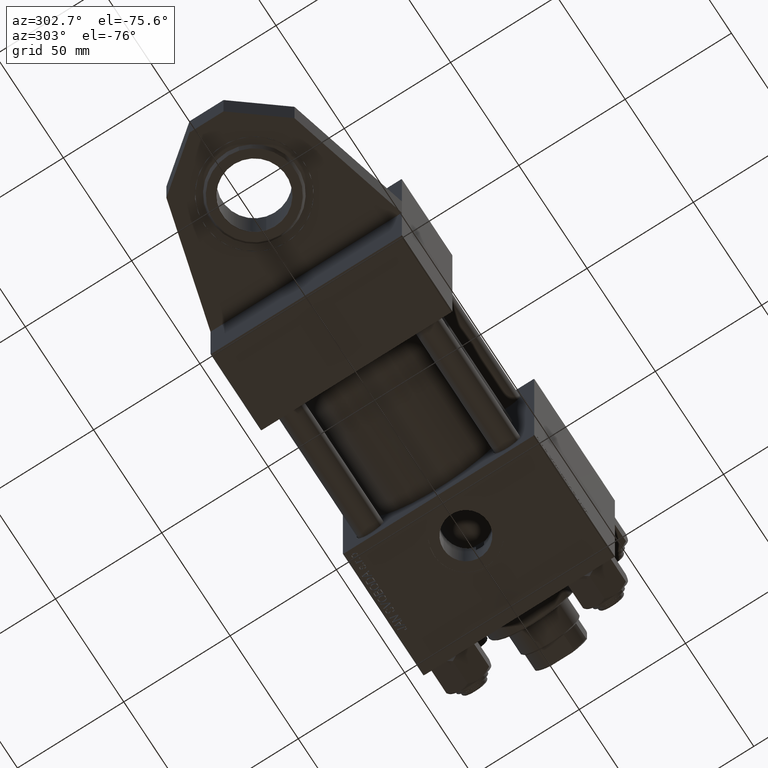
[diagram: clean part render]
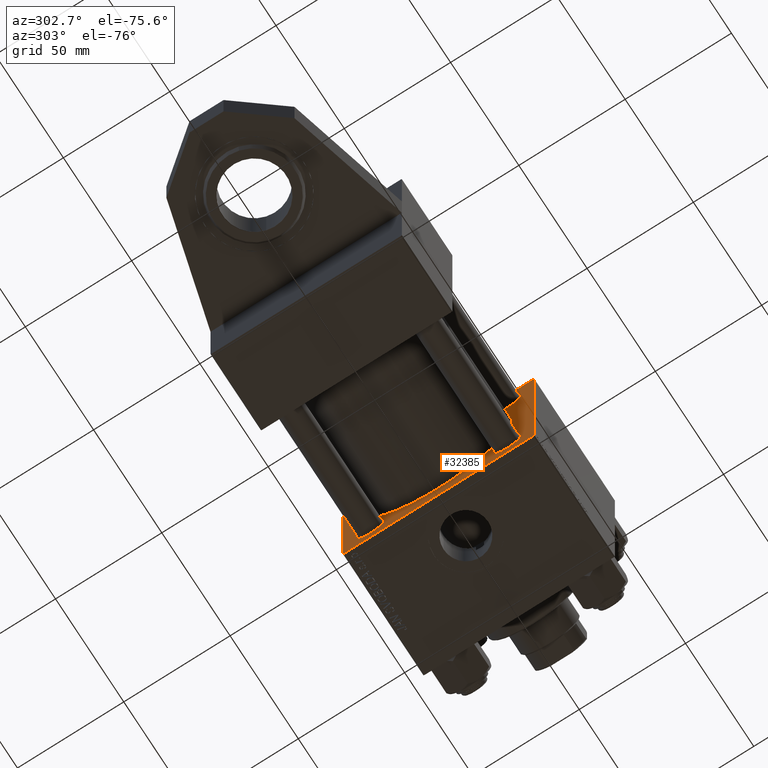
[diagram: same view with one face highlighted and labeled with its STEP entity id]
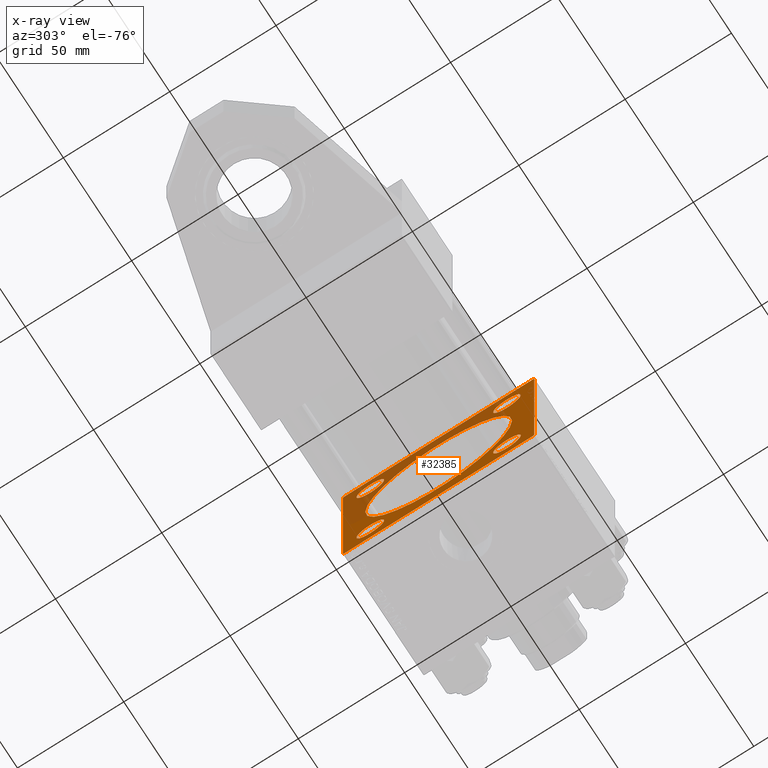
[diagram: x-ray of the same camera — body ghosted, the highlighted face saturated]
A machine part, auxiliary view. The second image highlights one B-rep face of the part: STEP entity #32385.
The next image is the same camera in x-ray: the body ghosted, the highlighted face saturated — about 37% of this face is hidden behind the body in this view.
In plain terms, the highlighted planar face has unit normal (-1, 0, 0).
Its self-contained STEP definition (entity closure, byte-faithful):
#149 = EDGE_CURVE ( 'NONE', #8899, #30186, #46057, .T. ) ;
#289 = EDGE_LOOP ( 'NONE', ( #23465, #17514 ) ) ;
#728 = CARTESIAN_POINT ( 'NONE',  ( 97.00000000000000000, -44.74999999999997158, 44.74999999999997158 ) ) ;
#780 = VERTEX_POINT ( 'NONE', #11046 ) ;
#839 = EDGE_CURVE ( 'NONE', #32748, #32098, #35533, .T. ) ;
#1554 = CARTESIAN_POINT ( 'NONE',  ( 97.00000000000000000, -32.14999999999999147, 32.14999999999999147 ) ) ;
#2432 = LINE ( 'NONE', #13619, #17918 ) ;
#2806 = VERTEX_POINT ( 'NONE', #44002 ) ;
#3356 = DIRECTION ( 'NONE',  ( 0.000000000000000000, 0.000000000000000000, 1.000000000000000000 ) ) ;
#3365 = CARTESIAN_POINT ( 'NONE',  ( 97.00000000000000000, 32.14999999999999147, -32.15000000000000568 ) ) ;
#3500 = FACE_BOUND ( 'NONE', #289, .T. ) ;
#3706 = DIRECTION ( 'NONE',  ( 1.000000000000000000, 0.000000000000000000, 0.000000000000000000 ) ) ;
#3851 = CARTESIAN_POINT ( 'NONE',  ( 97.00000000000000000, -45.00000000000000000, 44.99999999999998579 ) ) ;
#3998 = CARTESIAN_POINT ( 'NONE',  ( 97.00000000000000000, 0.000000000000000000, 0.000000000000000000 ) ) ;
#4211 = VERTEX_POINT ( 'NONE', #43145 ) ;
#4386 = AXIS2_PLACEMENT_3D ( 'NONE', #19451, #3706, #34706 ) ;
#5355 = VERTEX_POINT ( 'NONE', #45719 ) ;
#5526 = EDGE_LOOP ( 'NONE', ( #23642, #17345 ) ) ;
#5701 = CIRCLE ( 'NONE', #26782, 6.499999999999977796 ) ;
#5805 = DIRECTION ( 'NONE',  ( 0.000000000000000000, -1.000000000000000000, 0.000000000000000000 ) ) ;
#5889 = VECTOR ( 'NONE', #6774, 1000.000000000000000 ) ;
#5965 = AXIS2_PLACEMENT_3D ( 'NONE', #41883, #7077, #30462 ) ;
#6399 = EDGE_CURVE ( 'NONE', #4211, #17092, #49511, .T. ) ;
#6440 = CIRCLE ( 'NONE', #34833, 34.50000000000000000 ) ;
#6774 = DIRECTION ( 'NONE',  ( 0.000000000000000000, 0.7071067811865672237, -0.7071067811865279218 ) ) ;
#7077 = DIRECTION ( 'NONE',  ( 1.000000000000000000, 0.000000000000000000, 0.000000000000000000 ) ) ;
#7206 = EDGE_CURVE ( 'NONE', #2806, #5355, #2432, .T. ) ;
#7510 = DIRECTION ( 'NONE',  ( 1.000000000000000000, 0.000000000000000000, 0.000000000000000000 ) ) ;
#7819 = FACE_BOUND ( 'NONE', #30782, .T. ) ;
#7973 = DIRECTION ( 'NONE',  ( 0.000000000000000000, 0.000000000000000000, -1.000000000000000000 ) ) ;
#8726 = DIRECTION ( 'NONE',  ( 1.000000000000000000, 0.000000000000000000, 0.000000000000000000 ) ) ;
#8899 = VERTEX_POINT ( 'NONE', #39683 ) ;
#9544 = VERTEX_POINT ( 'NONE', #40557 ) ;
#9945 = DIRECTION ( 'NONE',  ( 1.000000000000000000, 0.000000000000000000, 0.000000000000000000 ) ) ;
#11046 = CARTESIAN_POINT ( 'NONE',  ( 97.00000000000000000, 32.14999999999999147, -38.65000000000000568 ) ) ;
#11074 = DIRECTION ( 'NONE',  ( 0.000000000000000000, 0.000000000000000000, -1.000000000000000000 ) ) ;
#11245 = DIRECTION ( 'NONE',  ( 0.000000000000000000, 0.000000000000000000, 1.000000000000000000 ) ) ;
#11264 = VERTEX_POINT ( 'NONE', #22718 ) ;
#11580 = EDGE_CURVE ( 'NONE', #28352, #29652, #39571, .T. ) ;
#11787 = EDGE_LOOP ( 'NONE', ( #26591, #37643, #44524, #38356, #26624, #46240, #13344, #46895 ) ) ;
#12314 = CARTESIAN_POINT ( 'NONE',  ( 97.00000000000000000, -44.49999999999994316, 44.99999999999998579 ) ) ;
#12391 = DIRECTION ( 'NONE',  ( 1.000000000000000000, 0.000000000000000000, 0.000000000000000000 ) ) ;
#12577 = VECTOR ( 'NONE', #5805, 1000.000000000000000 ) ;
#13344 = ORIENTED_EDGE ( 'NONE', *, *, #7206, .T. ) ;
#13395 = DIRECTION ( 'NONE',  ( 0.000000000000000000, -1.000000000000000000, -1.541976423090495140E-16 ) ) ;
#13587 = EDGE_CURVE ( 'NONE', #22645, #29652, #24352, .T. ) ;
#13619 = CARTESIAN_POINT ( 'NONE',  ( 97.00000000000000000, 45.00000000000001421, 45.00000000000000000 ) ) ;
#14620 = AXIS2_PLACEMENT_3D ( 'NONE', #27874, #20234, #16433 ) ;
#14799 = VECTOR ( 'NONE', #13395, 1000.000000000000000 ) ;
#15279 = DIRECTION ( 'NONE',  ( 0.000000000000000000, 0.000000000000000000, 1.000000000000000000 ) ) ;
#15294 = LINE ( 'NONE', #3851, #36020 ) ;
#15364 = EDGE_CURVE ( 'NONE', #9544, #39203, #30214, .T. ) ;
#16054 = EDGE_CURVE ( 'NONE', #28352, #2806, #48697, .T. ) ;
#16222 = CARTESIAN_POINT ( 'NONE',  ( 97.00000000000000000, 45.00000000000001421, 45.00000000000000000 ) ) ;
#16433 = DIRECTION ( 'NONE',  ( 0.000000000000000000, 0.000000000000000000, 1.000000000000000000 ) ) ;
#16938 = ORIENTED_EDGE ( 'NONE', *, *, #15364, .T. ) ;
#16997 = LINE ( 'NONE', #44164, #12577 ) ;
#17092 = VERTEX_POINT ( 'NONE', #17194 ) ;
#17192 = EDGE_CURVE ( 'NONE', #30186, #8899, #39182, .T. ) ;
#17194 = CARTESIAN_POINT ( 'NONE',  ( 97.00000000000000000, 32.14999999999999147, 38.64999999999998437 ) ) ;
#17324 = CIRCLE ( 'NONE', #5965, 6.499999999999977796 ) ;
#17345 = ORIENTED_EDGE ( 'NONE', *, *, #17192, .T. ) ;
#17446 = ORIENTED_EDGE ( 'NONE', *, *, #6399, .T. ) ;
#17514 = ORIENTED_EDGE ( 'NONE', *, *, #45112, .T. ) ;
#17918 = VECTOR ( 'NONE', #28871, 1000.000000000000000 ) ;
#18118 = DIRECTION ( 'NONE',  ( 1.000000000000000000, 0.000000000000000000, 0.000000000000000000 ) ) ;
#18289 = EDGE_CURVE ( 'NONE', #17092, #4211, #17324, .T. ) ;
#19451 = CARTESIAN_POINT ( 'NONE',  ( 97.00000000000000000, 32.14999999999999147, -32.15000000000000568 ) ) ;
#19503 = FACE_BOUND ( 'NONE', #33205, .T. ) ;
#19576 = VERTEX_POINT ( 'NONE', #43029 ) ;
#19813 = CARTESIAN_POINT ( 'NONE',  ( 97.00000000000000000, -32.15000000000001279, -38.65000000000001279 ) ) ;
#19838 = EDGE_CURVE ( 'NONE', #22645, #28467, #15294, .T. ) ;
#20007 = CARTESIAN_POINT ( 'NONE',  ( 97.00000000000000000, 44.75000000000000000, -44.75000000000000000 ) ) ;
#20126 = EDGE_CURVE ( 'NONE', #19576, #28467, #37342, .T. ) ;
#20234 = DIRECTION ( 'NONE',  ( 1.000000000000000000, 0.000000000000000000, 0.000000000000000000 ) ) ;
#21563 = AXIS2_PLACEMENT_3D ( 'NONE', #3998, #31198, #34997 ) ;
#21938 = EDGE_CURVE ( 'NONE', #34877, #19576, #16997, .T. ) ;
#22133 = CARTESIAN_POINT ( 'NONE',  ( 97.00000000000000000, -2.602085213965210642E-15, 34.50000000000000000 ) ) ;
#22548 = CARTESIAN_POINT ( 'NONE',  ( 97.00000000000000000, -44.99999999999999289, -44.49999999999991473 ) ) ;
#22645 = VERTEX_POINT ( 'NONE', #50019 ) ;
#22718 = CARTESIAN_POINT ( 'NONE',  ( 97.00000000000000000, 32.14999999999999147, -25.65000000000000568 ) ) ;
#23313 = FACE_OUTER_BOUND ( 'NONE', #11787, .T. ) ;
#23465 = ORIENTED_EDGE ( 'NONE', *, *, #24768, .T. ) ;
#23478 = AXIS2_PLACEMENT_3D ( 'NONE', #3365, #18118, #11245 ) ;
#23642 = ORIENTED_EDGE ( 'NONE', *, *, #149, .T. ) ;
#24315 = DIRECTION ( 'NONE',  ( 0.000000000000000000, 0.000000000000000000, 1.000000000000000000 ) ) ;
#24352 = LINE ( 'NONE', #728, #39908 ) ;
#24475 = DIRECTION ( 'NONE',  ( 1.000000000000000000, 0.000000000000000000, 0.000000000000000000 ) ) ;
#24768 = EDGE_CURVE ( 'NONE', #11264, #780, #35212, .T. ) ;
#25573 = CARTESIAN_POINT ( 'NONE',  ( 97.00000000000000000, 44.74999999999875655, 44.75000000000125056 ) ) ;
#26591 = ORIENTED_EDGE ( 'NONE', *, *, #21938, .T. ) ;
#26624 = ORIENTED_EDGE ( 'NONE', *, *, #11580, .F. ) ;
#26680 = CARTESIAN_POINT ( 'NONE',  ( 97.00000000000000000, 1.622946243093158675E-15, -34.50000000000000000 ) ) ;
#26727 = DIRECTION ( 'NONE',  ( 0.000000000000000000, 7.709882115452478166E-17, -1.000000000000000000 ) ) ;
#26782 = AXIS2_PLACEMENT_3D ( 'NONE', #32108, #24475, #3356 ) ;
#27044 = AXIS2_PLACEMENT_3D ( 'NONE', #36477, #12391, #24315 ) ;
#27874 = CARTESIAN_POINT ( 'NONE',  ( 97.00000000000000000, 32.14999999999999147, 32.15000000000000568 ) ) ;
#28173 = ORIENTED_EDGE ( 'NONE', *, *, #42140, .T. ) ;
#28352 = VERTEX_POINT ( 'NONE', #46160 ) ;
#28377 = VECTOR ( 'NONE', #45934, 1000.000000000000114 ) ;
#28467 = VERTEX_POINT ( 'NONE', #22548 ) ;
#28550 = CARTESIAN_POINT ( 'NONE',  ( 97.00000000000000000, -32.14999999999999147, 25.65000000000001279 ) ) ;
#28826 = EDGE_LOOP ( 'NONE', ( #16938, #40066 ) ) ;
#28871 = DIRECTION ( 'NONE',  ( 0.000000000000000000, 0.000000000000000000, -1.000000000000000000 ) ) ;
#29652 = VERTEX_POINT ( 'NONE', #12314 ) ;
#30186 = VERTEX_POINT ( 'NONE', #19813 ) ;
#30214 = CIRCLE ( 'NONE', #48881, 6.499999999999977796 ) ;
#30462 = DIRECTION ( 'NONE',  ( 0.000000000000000000, 0.000000000000000000, 1.000000000000000000 ) ) ;
#30782 = EDGE_LOOP ( 'NONE', ( #50146, #28173 ) ) ;
#31198 = DIRECTION ( 'NONE',  ( -1.000000000000000000, 0.000000000000000000, -0.000000000000000000 ) ) ;
#31635 = CARTESIAN_POINT ( 'NONE',  ( 97.00000000000000000, 44.50000000000001421, -45.00000000000000000 ) ) ;
#31736 = DIRECTION ( 'NONE',  ( -0.000000000000000000, 0.7071067811865474617, 0.7071067811865474617 ) ) ;
#32098 = VERTEX_POINT ( 'NONE', #26680 ) ;
#32108 = CARTESIAN_POINT ( 'NONE',  ( 97.00000000000000000, -32.14999999999999147, 32.14999999999999147 ) ) ;
#32385 = ADVANCED_FACE ( 'NONE', ( #38297, #19503, #3500, #34495, #7819, #23313 ), #38796, .T. ) ;
#32748 = VERTEX_POINT ( 'NONE', #22133 ) ;
#33205 = EDGE_LOOP ( 'NONE', ( #42361, #17446 ) ) ;
#33539 = CARTESIAN_POINT ( 'NONE',  ( 97.00000000000000000, -44.74999999999965183, -44.75000000000027001 ) ) ;
#34495 = FACE_BOUND ( 'NONE', #5526, .T. ) ;
#34706 = DIRECTION ( 'NONE',  ( 0.000000000000000000, 0.000000000000000000, 1.000000000000000000 ) ) ;
#34833 = AXIS2_PLACEMENT_3D ( 'NONE', #45864, #7510, #11074 ) ;
#34877 = VERTEX_POINT ( 'NONE', #31635 ) ;
#34997 = DIRECTION ( 'NONE',  ( -0.000000000000000000, 0.000000000000000000, 1.000000000000000000 ) ) ;
#35212 = CIRCLE ( 'NONE', #4386, 6.499999999999999112 ) ;
#35533 = CIRCLE ( 'NONE', #37968, 34.50000000000000000 ) ;
#36020 = VECTOR ( 'NONE', #26727, 1000.000000000000000 ) ;
#36477 = CARTESIAN_POINT ( 'NONE',  ( 97.00000000000000000, -32.15000000000001279, -32.15000000000000568 ) ) ;
#37342 = LINE ( 'NONE', #33539, #37697 ) ;
#37643 = ORIENTED_EDGE ( 'NONE', *, *, #20126, .T. ) ;
#37697 = VECTOR ( 'NONE', #49036, 1000.000000000000000 ) ;
#37968 = AXIS2_PLACEMENT_3D ( 'NONE', #43519, #8726, #7973 ) ;
#38297 = FACE_BOUND ( 'NONE', #28826, .T. ) ;
#38356 = ORIENTED_EDGE ( 'NONE', *, *, #13587, .T. ) ;
#38389 = CARTESIAN_POINT ( 'NONE',  ( 97.00000000000000000, -32.15000000000001279, -32.15000000000000568 ) ) ;
#38796 = PLANE ( 'NONE',  #21563 ) ;
#39182 = CIRCLE ( 'NONE', #27044, 6.500000000000005329 ) ;
#39203 = VERTEX_POINT ( 'NONE', #28550 ) ;
#39559 = AXIS2_PLACEMENT_3D ( 'NONE', #38389, #42952, #15279 ) ;
#39571 = LINE ( 'NONE', #16222, #14799 ) ;
#39683 = CARTESIAN_POINT ( 'NONE',  ( 97.00000000000000000, -32.15000000000001279, -25.64999999999999858 ) ) ;
#39796 = CIRCLE ( 'NONE', #23478, 6.499999999999999112 ) ;
#39908 = VECTOR ( 'NONE', #31736, 1000.000000000000114 ) ;
#40066 = ORIENTED_EDGE ( 'NONE', *, *, #44019, .T. ) ;
#40557 = CARTESIAN_POINT ( 'NONE',  ( 97.00000000000000000, -32.14999999999999147, 38.64999999999997016 ) ) ;
#41883 = CARTESIAN_POINT ( 'NONE',  ( 97.00000000000000000, 32.14999999999999147, 32.15000000000000568 ) ) ;
#42140 = EDGE_CURVE ( 'NONE', #32098, #32748, #6440, .T. ) ;
#42361 = ORIENTED_EDGE ( 'NONE', *, *, #18289, .T. ) ;
#42364 = LINE ( 'NONE', #20007, #28377 ) ;
#42952 = DIRECTION ( 'NONE',  ( 1.000000000000000000, 0.000000000000000000, 0.000000000000000000 ) ) ;
#43029 = CARTESIAN_POINT ( 'NONE',  ( 97.00000000000000000, -44.49999999999990052, -45.00000000000000000 ) ) ;
#43145 = CARTESIAN_POINT ( 'NONE',  ( 97.00000000000000000, 32.14999999999999147, 25.65000000000002700 ) ) ;
#43519 = CARTESIAN_POINT ( 'NONE',  ( 97.00000000000000000, -2.602085213965210642E-15, 0.000000000000000000 ) ) ;
#44002 = CARTESIAN_POINT ( 'NONE',  ( 97.00000000000000000, 45.00000000000001421, 44.50000000000000000 ) ) ;
#44019 = EDGE_CURVE ( 'NONE', #39203, #9544, #5701, .T. ) ;
#44164 = CARTESIAN_POINT ( 'NONE',  ( 97.00000000000000000, 45.00000000000001421, -45.00000000000000000 ) ) ;
#44524 = ORIENTED_EDGE ( 'NONE', *, *, #19838, .F. ) ;
#45112 = EDGE_CURVE ( 'NONE', #780, #11264, #39796, .T. ) ;
#45719 = CARTESIAN_POINT ( 'NONE',  ( 97.00000000000000000, 45.00000000000001421, -44.49999999999997158 ) ) ;
#45864 = CARTESIAN_POINT ( 'NONE',  ( 97.00000000000000000, -2.602085213965210642E-15, 0.000000000000000000 ) ) ;
#45934 = DIRECTION ( 'NONE',  ( -0.000000000000000000, -0.7071067811865474617, -0.7071067811865474617 ) ) ;
#46057 = CIRCLE ( 'NONE', #39559, 6.500000000000005329 ) ;
#46160 = CARTESIAN_POINT ( 'NONE',  ( 97.00000000000000000, 44.49999999999998579, 45.00000000000000000 ) ) ;
#46240 = ORIENTED_EDGE ( 'NONE', *, *, #16054, .T. ) ;
#46794 = EDGE_CURVE ( 'NONE', #5355, #34877, #42364, .T. ) ;
#46895 = ORIENTED_EDGE ( 'NONE', *, *, #46794, .T. ) ;
#48059 = DIRECTION ( 'NONE',  ( 0.000000000000000000, 0.000000000000000000, 1.000000000000000000 ) ) ;
#48697 = LINE ( 'NONE', #25573, #5889 ) ;
#48881 = AXIS2_PLACEMENT_3D ( 'NONE', #1554, #9945, #48059 ) ;
#49036 = DIRECTION ( 'NONE',  ( 0.000000000000000000, -0.7071067811865524577, 0.7071067811865426878 ) ) ;
#49511 = CIRCLE ( 'NONE', #14620, 6.499999999999977796 ) ;
#50019 = CARTESIAN_POINT ( 'NONE',  ( 97.00000000000000000, -45.00000000000000000, 44.49999999999995737 ) ) ;
#50146 = ORIENTED_EDGE ( 'NONE', *, *, #839, .T. ) ;